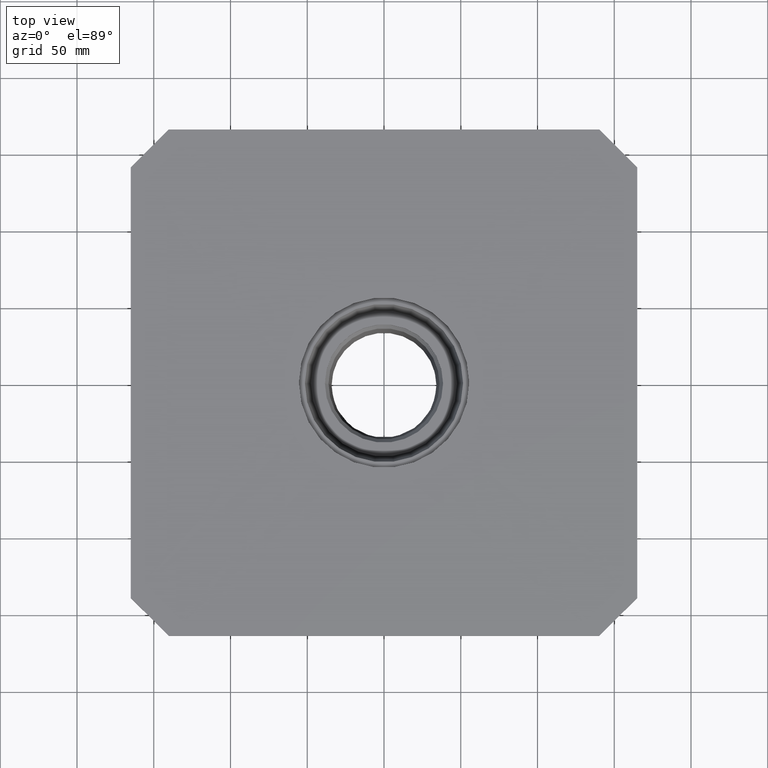
[diagram: clean part render]
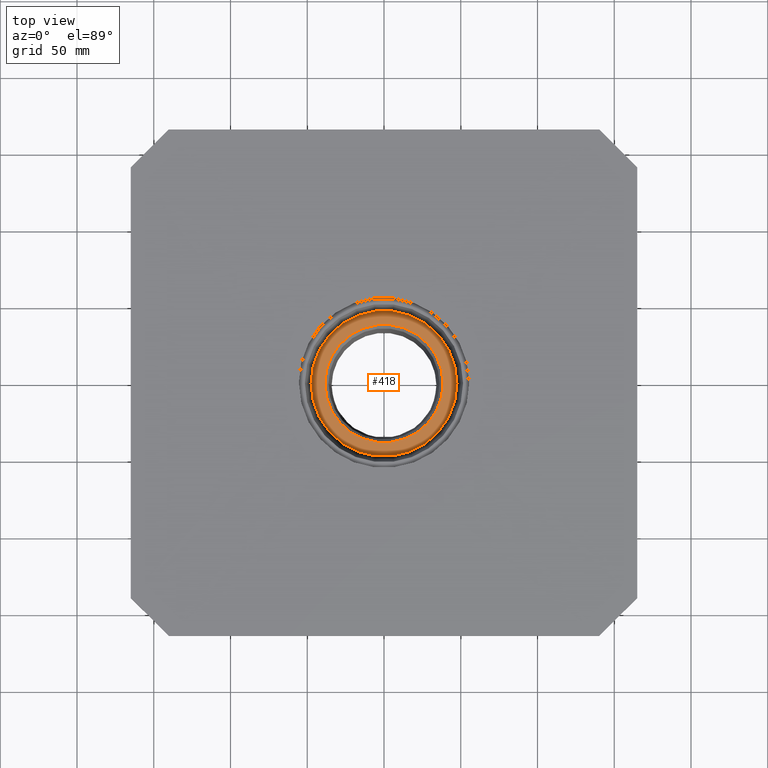
[diagram: same view with one face highlighted and labeled with its STEP entity id]
A machine part, top view. The second image highlights one B-rep face of the part: STEP entity #418.
In plain terms, the highlighted planar face has unit normal (0, 0, 1).
Its self-contained STEP definition (entity closure, byte-faithful):
#87=PLANE('',#469);
#134=ORIENTED_EDGE('',*,*,#215,.T.);
#135=ORIENTED_EDGE('',*,*,#214,.F.);
#214=EDGE_CURVE('',#252,#252,#274,.T.);
#215=EDGE_CURVE('',#253,#253,#275,.T.);
#252=VERTEX_POINT('',#701);
#253=VERTEX_POINT('',#704);
#274=CIRCLE('',#468,47.498);
#275=CIRCLE('',#470,38.498);
#308=EDGE_LOOP('',(#134));
#309=EDGE_LOOP('',(#135));
#362=FACE_BOUND('',#308,.T.);
#363=FACE_BOUND('',#309,.T.);
#418=ADVANCED_FACE('',(#362,#363),#87,.T.);
#468=AXIS2_PLACEMENT_3D('',#700,#566,#567);
#469=AXIS2_PLACEMENT_3D('',#702,#568,#569);
#470=AXIS2_PLACEMENT_3D('',#703,#570,#571);
#566=DIRECTION('',(0.,0.,-1.));
#567=DIRECTION('',(-1.,0.,0.));
#568=DIRECTION('',(0.,0.,1.));
#569=DIRECTION('',(1.,0.,0.));
#570=DIRECTION('',(0.,0.,-1.));
#571=DIRECTION('',(-1.,0.,0.));
#700=CARTESIAN_POINT('',(0.,0.,-27.523));
#701=CARTESIAN_POINT('',(-47.498,0.,-27.523));
#702=CARTESIAN_POINT('',(-47.498,0.,-27.523));
#703=CARTESIAN_POINT('',(0.,0.,-27.523));
#704=CARTESIAN_POINT('',(-38.498,0.,-27.523));